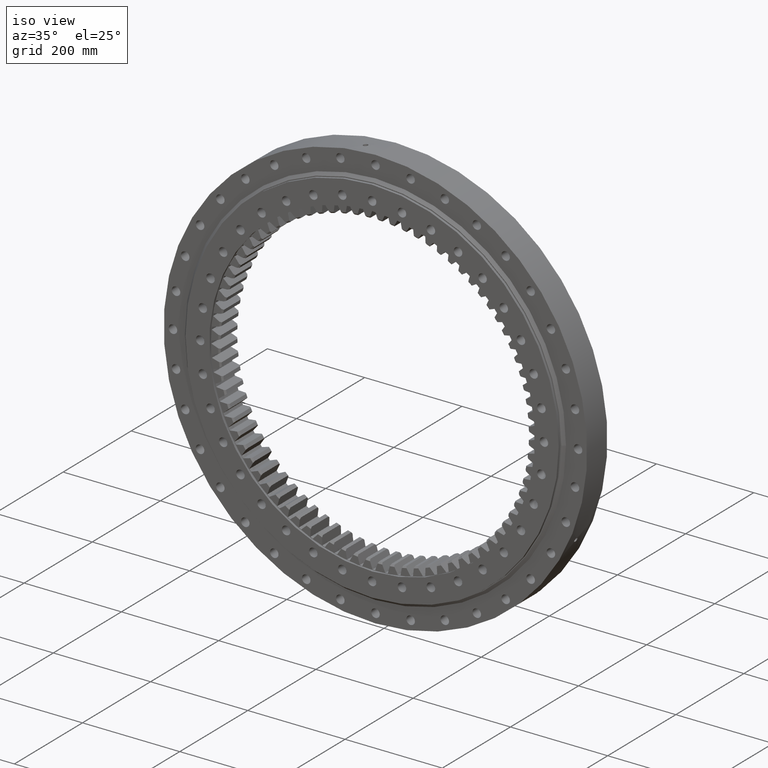
[diagram: clean part render]
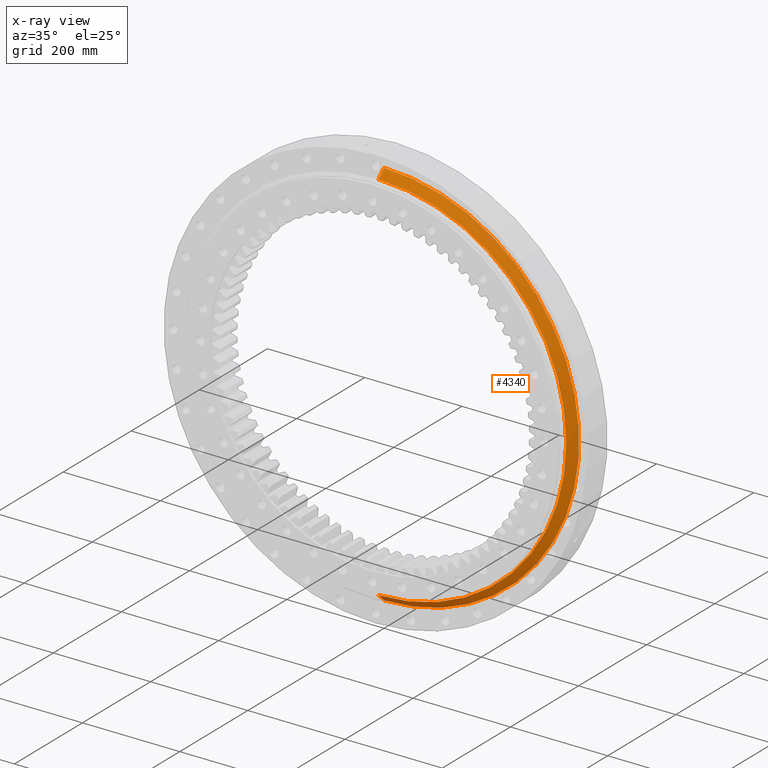
[diagram: x-ray — body ghosted, one internal face saturated and labeled with its STEP entity id]
A machine part, iso view, then the same camera in x-ray: the body is ghosted and one INTERNAL B-rep face — a face not visible from any outside direction — is saturated and labeled: STEP entity #4340.
In plain terms, the highlighted conical surface has half-angle 45 deg.
Its self-contained STEP definition (entity closure, byte-faithful):
#1545 = DIRECTION ( 'NONE',  ( 5.551115123125782700E-017, -3.592954772249697400E-017, 1.000000000000000000 ) ) ;
#3570 = CIRCLE ( 'NONE', #13278, 386.2500000000000000 ) ;
#3934 = VERTEX_POINT ( 'NONE', #22968 ) ;
#4340 = ADVANCED_FACE ( 'NONE', ( #7274 ), #6089, .F. ) ;
#5894 = DIRECTION ( 'NONE',  ( 1.173697223544192200E-016, -1.000000000000000000, -3.494217355385783800E-017 ) ) ;
#6089 = CONICAL_SURFACE ( 'NONE', #13372, 386.2500000000000000, 0.7853981633974460600 ) ;
#6377 = LINE ( 'NONE', #15675, #22203 ) ;
#6931 = CARTESIAN_POINT ( 'NONE',  ( -7.154104500138279000E-014, -0.7071067811865482400, -401.9705627484771100 ) ) ;
#7274 = FACE_OUTER_BOUND ( 'NONE', #18046, .T. ) ;
#13053 = ORIENTED_EDGE ( 'NONE', *, *, #22602, .T. ) ;
#13278 = AXIS2_PLACEMENT_3D ( 'NONE', #17597, #5894, #1545 ) ;
#13372 = AXIS2_PLACEMENT_3D ( 'NONE', #23156, #22855, #23437 ) ;
#14995 = VERTEX_POINT ( 'NONE', #23521 ) ;
#15601 = DIRECTION ( 'NONE',  ( -1.222452380498866200E-016, 0.7071067811865491300, -0.7071067811865459100 ) ) ;
#15675 = CARTESIAN_POINT ( 'NONE',  ( -1.951307115144655100E-014, -16.42766952966372400, -386.2500000000000000 ) ) ;
#15865 = EDGE_CURVE ( 'NONE', #23598, #24404, #17567, .T. ) ;
#16217 = CARTESIAN_POINT ( 'NONE',  ( 2.239684162582731700E-014, -0.7071067811865764400, 401.9705627484771100 ) ) ;
#17037 = EDGE_CURVE ( 'NONE', #14995, #23598, #6377, .T. ) ;
#17287 = EDGE_CURVE ( 'NONE', #3934, #24404, #24220, .T. ) ;
#17567 = CIRCLE ( 'NONE', #22006, 401.9705627484771100 ) ;
#17597 = CARTESIAN_POINT ( 'NONE',  ( 1.928111011626785700E-015, -16.42766952966373900, -5.740184797909325200E-016 ) ) ;
#18046 = EDGE_LOOP ( 'NONE', ( #13053, #20292, #21552, #22813 ) ) ;
#20292 = ORIENTED_EDGE ( 'NONE', *, *, #17287, .T. ) ;
#21156 = CARTESIAN_POINT ( 'NONE',  ( 8.299292658279388700E-017, -0.7071067811865623400, -2.470784786933064100E-017 ) ) ;
#21233 = DIRECTION ( 'NONE',  ( 1.173697223544192200E-016, -1.000000000000000000, -3.494217355385783800E-017 ) ) ;
#21264 = DIRECTION ( 'NONE',  ( 5.551115123125782700E-017, -3.506383190335983600E-017, 1.000000000000000000 ) ) ;
#21552 = ORIENTED_EDGE ( 'NONE', *, *, #15865, .F. ) ;
#22006 = AXIS2_PLACEMENT_3D ( 'NONE', #21156, #21233, #21264 ) ;
#22203 = VECTOR ( 'NONE', #15601, 1000.000000000000000 ) ;
#22489 = CARTESIAN_POINT ( 'NONE',  ( -2.393268944236639700E-014, -16.42766952966375300, 386.2500000000000000 ) ) ;
#22521 = DIRECTION ( 'NONE',  ( -1.303362207392471800E-016, 0.7071067811865491300, 0.7071067811865459100 ) ) ;
#22602 = EDGE_CURVE ( 'NONE', #14995, #3934, #3570, .T. ) ;
#22813 = ORIENTED_EDGE ( 'NONE', *, *, #17037, .F. ) ;
#22855 = DIRECTION ( 'NONE',  ( -1.173697223544192200E-016, 1.000000000000000000, 3.494217355385783800E-017 ) ) ;
#22968 = CARTESIAN_POINT ( 'NONE',  ( -2.538152205933867800E-014, -16.42766952966375300, 386.2500000000000000 ) ) ;
#23156 = CARTESIAN_POINT ( 'NONE',  ( 1.928111011626785700E-015, -16.42766952966373900, -5.740184797909325200E-016 ) ) ;
#23437 = DIRECTION ( 'NONE',  ( -5.551115123125782700E-017, 3.592954772249697400E-017, -1.000000000000000000 ) ) ;
#23521 = CARTESIAN_POINT ( 'NONE',  ( -2.087196346205414400E-014, -16.42766952966372400, -386.2500000000000000 ) ) ;
#23598 = VERTEX_POINT ( 'NONE', #6931 ) ;
#24181 = VECTOR ( 'NONE', #22521, 1000.000000000000000 ) ;
#24220 = LINE ( 'NONE', #22489, #24181 ) ;
#24404 = VERTEX_POINT ( 'NONE', #16217 ) ;